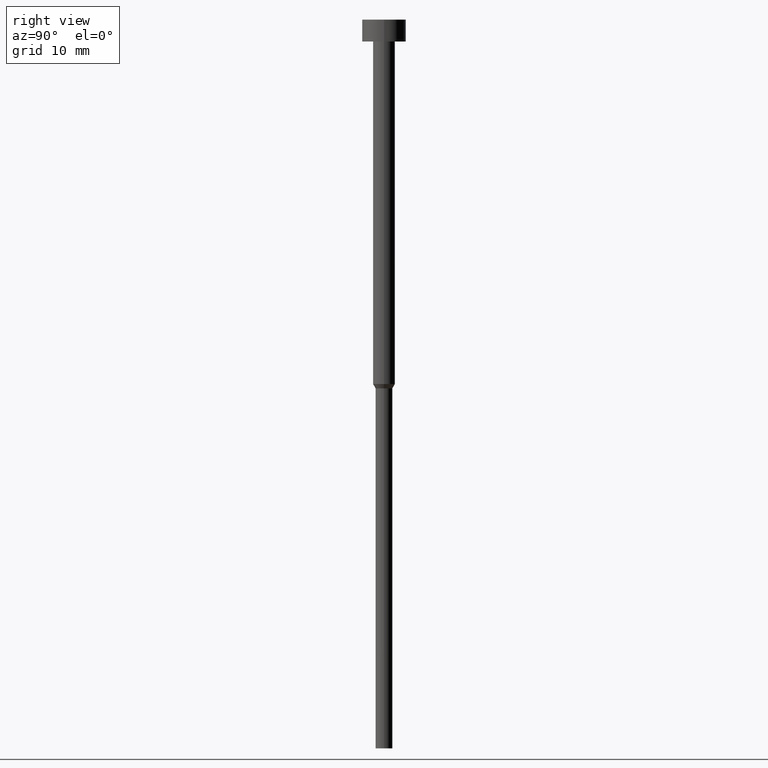
[diagram: clean part render]
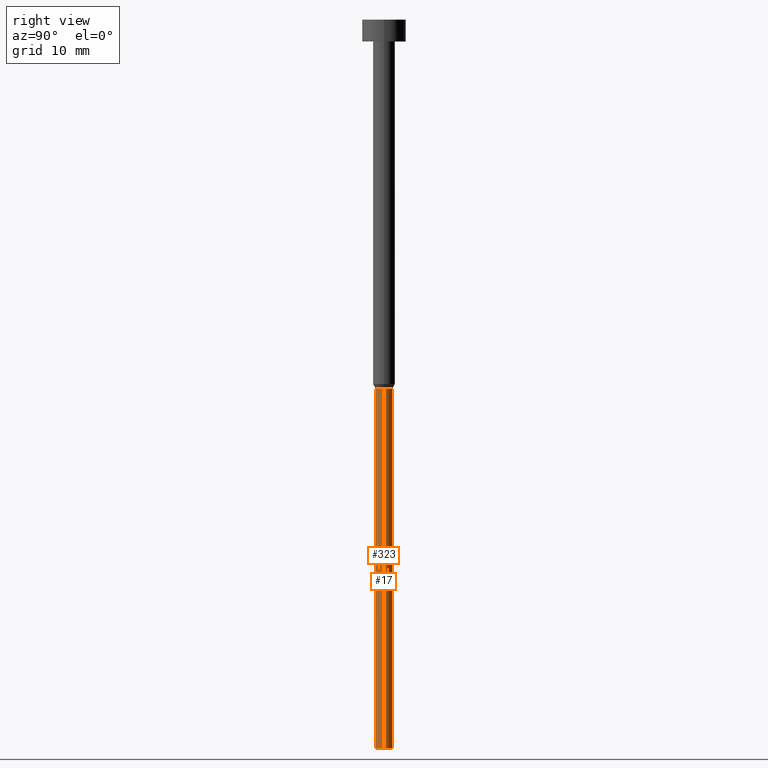
[diagram: same view with one multi-face feature highlighted, each face labeled with its STEP entity id]
A machine part, right view. The highlighted faces form ONE feature: a constant-radius fillet chain: 2 tangent blend faces with common blend radius 1.15 mm. The faces share edges in the B-rep.
Their STEP definitions:
[1] entity #17 (Cylinder):
#4 = CARTESIAN_POINT ( 'NONE',  ( 1.149999999999999911, 0.000000000000000000, -100.0000000000000000 ) ) ;
#5 = VECTOR ( 'NONE', #156, 1000.000000000000000 ) ;
#8 = CARTESIAN_POINT ( 'NONE',  ( -1.149999999999999911, 1.408343819019456028E-16, -100.0000000000000000 ) ) ;
#17 = ADVANCED_FACE ( 'NONE', ( #88 ), #306, .T. ) ;
#20 = CARTESIAN_POINT ( 'NONE',  ( 1.149999999999999911, 0.000000000000000000, -50.60621778264910375 ) ) ;
#50 = LINE ( 'NONE', #107, #326 ) ;
#64 = CARTESIAN_POINT ( 'NONE',  ( 0.000000000000000000, 0.000000000000000000, 0.000000000000000000 ) ) ;
#65 = CARTESIAN_POINT ( 'NONE',  ( 0.000000000000000000, 0.000000000000000000, -50.60621778264910375 ) ) ;
#70 = AXIS2_PLACEMENT_3D ( 'NONE', #64, #132, #338 ) ;
#76 = VERTEX_POINT ( 'NONE', #182 ) ;
#83 = EDGE_CURVE ( 'NONE', #334, #76, #50, .T. ) ;
#88 = FACE_OUTER_BOUND ( 'NONE', #201, .T. ) ;
#107 = CARTESIAN_POINT ( 'NONE',  ( -1.149999999999999911, 1.408343819019456028E-16, 0.000000000000000000 ) ) ;
#110 = AXIS2_PLACEMENT_3D ( 'NONE', #65, #279, #325 ) ;
#115 = VERTEX_POINT ( 'NONE', #20 ) ;
#125 = DIRECTION ( 'NONE',  ( 1.000000000000000000, 0.000000000000000000, 0.000000000000000000 ) ) ;
#132 = DIRECTION ( 'NONE',  ( -0.000000000000000000, -0.000000000000000000, 1.000000000000000000 ) ) ;
#135 = CARTESIAN_POINT ( 'NONE',  ( 0.000000000000000000, 0.000000000000000000, -100.0000000000000000 ) ) ;
#144 = ORIENTED_EDGE ( 'NONE', *, *, #83, .T. ) ;
#156 = DIRECTION ( 'NONE',  ( -0.000000000000000000, -0.000000000000000000, 1.000000000000000000 ) ) ;
#157 = DIRECTION ( 'NONE',  ( -0.000000000000000000, -0.000000000000000000, 1.000000000000000000 ) ) ;
#178 = DIRECTION ( 'NONE',  ( -0.000000000000000000, -0.000000000000000000, 1.000000000000000000 ) ) ;
#181 = LINE ( 'NONE', #344, #5 ) ;
#182 = CARTESIAN_POINT ( 'NONE',  ( -1.149999999999999911, 1.408343819019456028E-16, -50.60621778264910375 ) ) ;
#197 = CIRCLE ( 'NONE', #333, 1.149999999999999911 ) ;
#201 = EDGE_LOOP ( 'NONE', ( #258, #144, #243, #285 ) ) ;
#226 = EDGE_CURVE ( 'NONE', #115, #76, #311, .T. ) ;
#243 = ORIENTED_EDGE ( 'NONE', *, *, #226, .F. ) ;
#255 = EDGE_CURVE ( 'NONE', #355, #115, #181, .T. ) ;
#258 = ORIENTED_EDGE ( 'NONE', *, *, #287, .T. ) ;
#279 = DIRECTION ( 'NONE',  ( -0.000000000000000000, -0.000000000000000000, 1.000000000000000000 ) ) ;
#285 = ORIENTED_EDGE ( 'NONE', *, *, #255, .F. ) ;
#287 = EDGE_CURVE ( 'NONE', #355, #334, #197, .T. ) ;
#306 = CYLINDRICAL_SURFACE ( 'NONE', #70, 1.149999999999999911 ) ;
#311 = CIRCLE ( 'NONE', #110, 1.149999999999999911 ) ;
#325 = DIRECTION ( 'NONE',  ( 1.000000000000000000, 0.000000000000000000, 0.000000000000000000 ) ) ;
#326 = VECTOR ( 'NONE', #157, 1000.000000000000000 ) ;
#333 = AXIS2_PLACEMENT_3D ( 'NONE', #135, #178, #125 ) ;
#334 = VERTEX_POINT ( 'NONE', #8 ) ;
#338 = DIRECTION ( 'NONE',  ( 1.000000000000000000, 0.000000000000000000, 0.000000000000000000 ) ) ;
#344 = CARTESIAN_POINT ( 'NONE',  ( 1.149999999999999911, 0.000000000000000000, 0.000000000000000000 ) ) ;
#355 = VERTEX_POINT ( 'NONE', #4 ) ;
[2] entity #323 (Cylinder):
#4 = CARTESIAN_POINT ( 'NONE',  ( 1.149999999999999911, 0.000000000000000000, -100.0000000000000000 ) ) ;
#5 = VECTOR ( 'NONE', #156, 1000.000000000000000 ) ;
#8 = CARTESIAN_POINT ( 'NONE',  ( -1.149999999999999911, 1.408343819019456028E-16, -100.0000000000000000 ) ) ;
#12 = ORIENTED_EDGE ( 'NONE', *, *, #31, .F. ) ;
#14 = FACE_OUTER_BOUND ( 'NONE', #305, .T. ) ;
#19 = CARTESIAN_POINT ( 'NONE',  ( 0.000000000000000000, 0.000000000000000000, -50.60621778264910375 ) ) ;
#20 = CARTESIAN_POINT ( 'NONE',  ( 1.149999999999999911, 0.000000000000000000, -50.60621778264910375 ) ) ;
#31 = EDGE_CURVE ( 'NONE', #76, #115, #296, .T. ) ;
#40 = AXIS2_PLACEMENT_3D ( 'NONE', #251, #96, #236 ) ;
#50 = LINE ( 'NONE', #107, #326 ) ;
#58 = CYLINDRICAL_SURFACE ( 'NONE', #195, 1.149999999999999911 ) ;
#69 = CARTESIAN_POINT ( 'NONE',  ( 0.000000000000000000, 0.000000000000000000, 0.000000000000000000 ) ) ;
#76 = VERTEX_POINT ( 'NONE', #182 ) ;
#83 = EDGE_CURVE ( 'NONE', #334, #76, #50, .T. ) ;
#90 = DIRECTION ( 'NONE',  ( 1.000000000000000000, 0.000000000000000000, 0.000000000000000000 ) ) ;
#96 = DIRECTION ( 'NONE',  ( -0.000000000000000000, -0.000000000000000000, 1.000000000000000000 ) ) ;
#107 = CARTESIAN_POINT ( 'NONE',  ( -1.149999999999999911, 1.408343819019456028E-16, 0.000000000000000000 ) ) ;
#115 = VERTEX_POINT ( 'NONE', #20 ) ;
#156 = DIRECTION ( 'NONE',  ( -0.000000000000000000, -0.000000000000000000, 1.000000000000000000 ) ) ;
#157 = DIRECTION ( 'NONE',  ( -0.000000000000000000, -0.000000000000000000, 1.000000000000000000 ) ) ;
#164 = DIRECTION ( 'NONE',  ( -0.000000000000000000, -0.000000000000000000, 1.000000000000000000 ) ) ;
#166 = AXIS2_PLACEMENT_3D ( 'NONE', #19, #164, #215 ) ;
#179 = EDGE_CURVE ( 'NONE', #334, #355, #213, .T. ) ;
#181 = LINE ( 'NONE', #344, #5 ) ;
#182 = CARTESIAN_POINT ( 'NONE',  ( -1.149999999999999911, 1.408343819019456028E-16, -50.60621778264910375 ) ) ;
#191 = ORIENTED_EDGE ( 'NONE', *, *, #83, .F. ) ;
#195 = AXIS2_PLACEMENT_3D ( 'NONE', #69, #274, #90 ) ;
#196 = ORIENTED_EDGE ( 'NONE', *, *, #255, .T. ) ;
#213 = CIRCLE ( 'NONE', #40, 1.149999999999999911 ) ;
#215 = DIRECTION ( 'NONE',  ( 1.000000000000000000, 0.000000000000000000, 0.000000000000000000 ) ) ;
#236 = DIRECTION ( 'NONE',  ( 1.000000000000000000, 0.000000000000000000, 0.000000000000000000 ) ) ;
#248 = ORIENTED_EDGE ( 'NONE', *, *, #179, .T. ) ;
#251 = CARTESIAN_POINT ( 'NONE',  ( 0.000000000000000000, 0.000000000000000000, -100.0000000000000000 ) ) ;
#255 = EDGE_CURVE ( 'NONE', #355, #115, #181, .T. ) ;
#274 = DIRECTION ( 'NONE',  ( -0.000000000000000000, -0.000000000000000000, 1.000000000000000000 ) ) ;
#296 = CIRCLE ( 'NONE', #166, 1.149999999999999911 ) ;
#305 = EDGE_LOOP ( 'NONE', ( #191, #248, #196, #12 ) ) ;
#323 = ADVANCED_FACE ( 'NONE', ( #14 ), #58, .T. ) ;
#326 = VECTOR ( 'NONE', #157, 1000.000000000000000 ) ;
#334 = VERTEX_POINT ( 'NONE', #8 ) ;
#344 = CARTESIAN_POINT ( 'NONE',  ( 1.149999999999999911, 0.000000000000000000, 0.000000000000000000 ) ) ;
#355 = VERTEX_POINT ( 'NONE', #4 ) ;